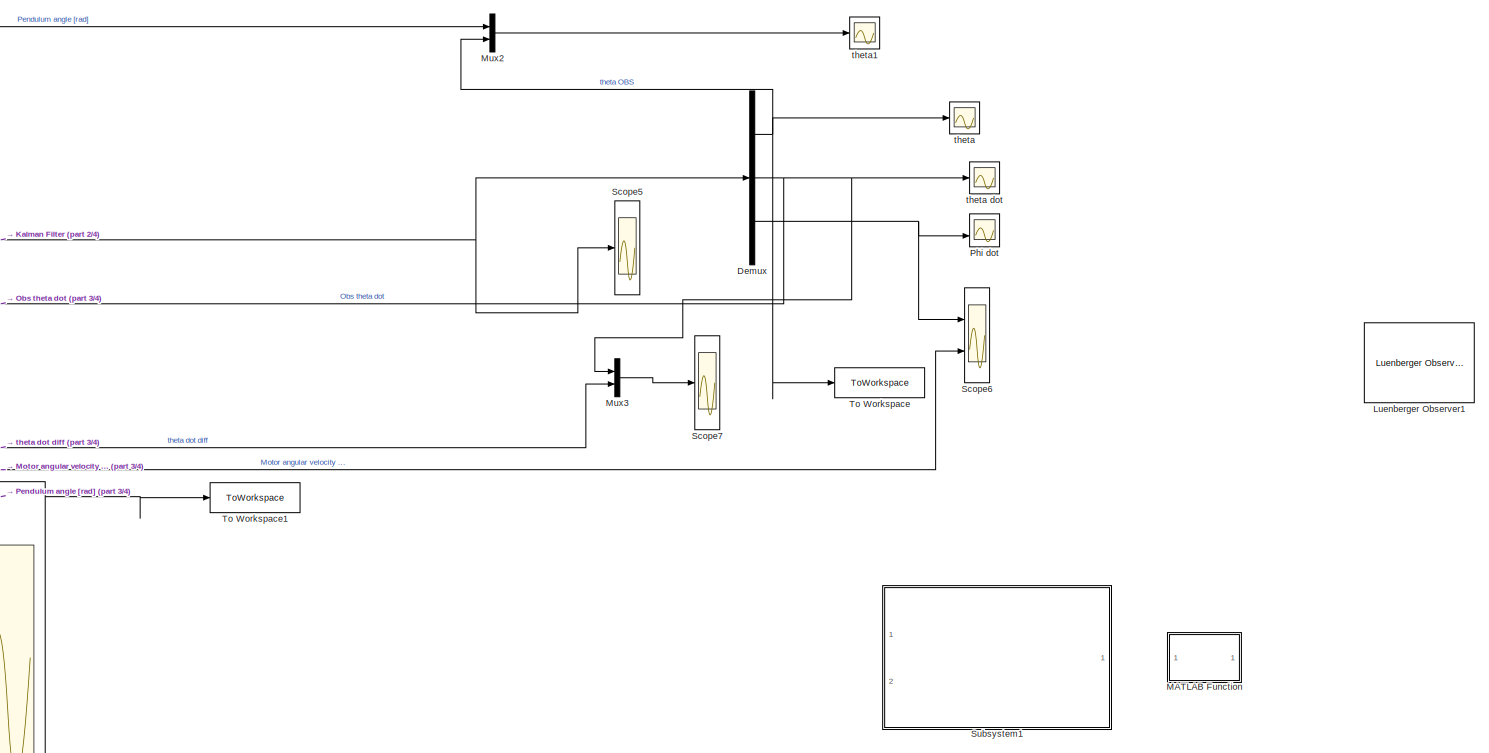
[diagram: root canvas - part 1/4, middle right region]
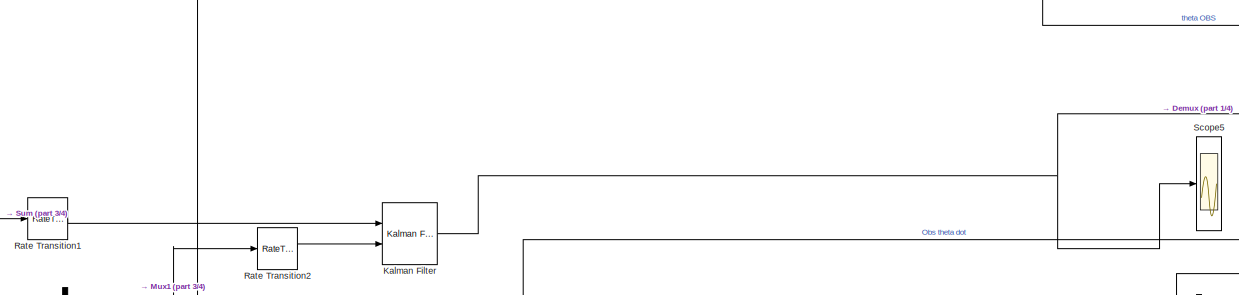
[diagram: root canvas - part 2/4, top center region]
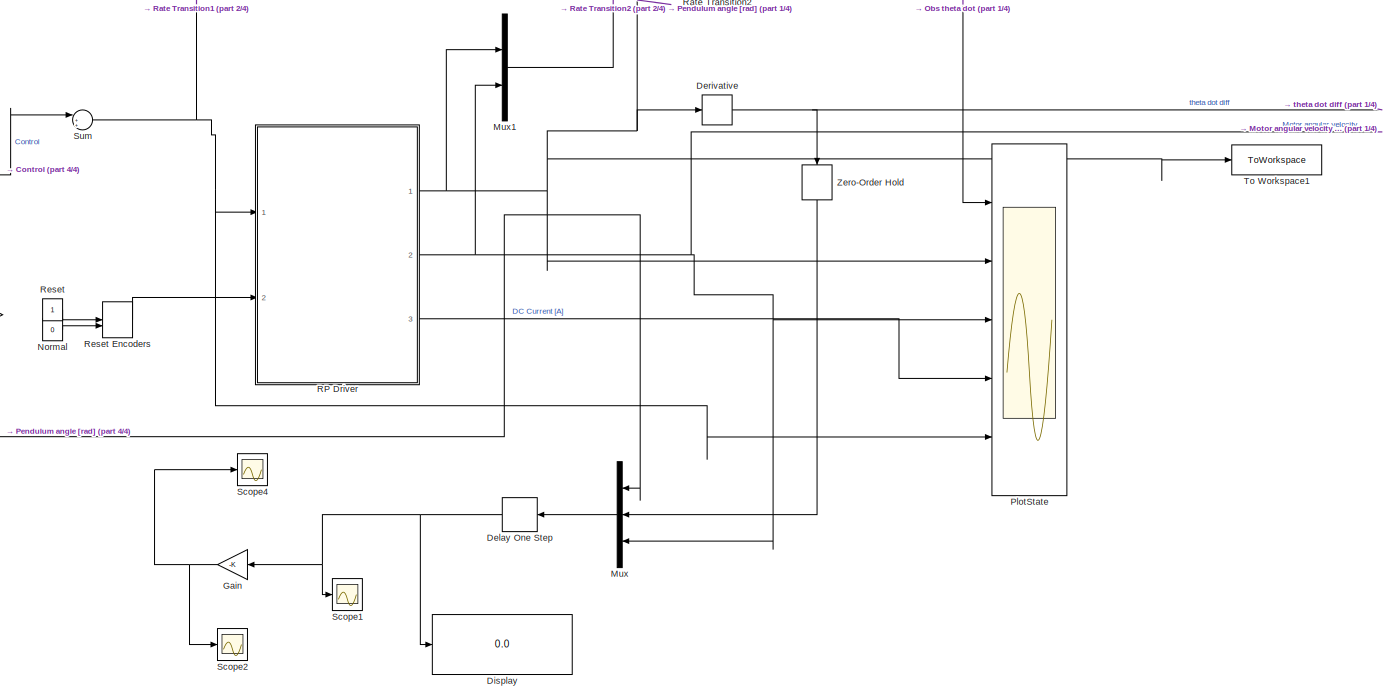
[diagram: root canvas - part 3/4, central region]
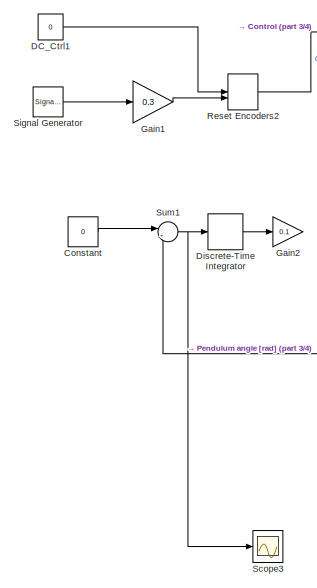
[diagram: root canvas - part 4/4, bottom left region]
MODEL slx_89e87b26c6ea
KIND model
CONFIG AbsTol = auto
CONFIG EnableMultiTasking = on
CONFIG FixedStep = h
CONFIG InitFcn = hwinit
CONFIG MaxStep = auto
CONFIG MinStep = auto
CONFIG PreLoadFcn = warning('off','MATLAB:dispatcher:InexactMatch');\n\n
CONFIG RelTol = 1e-3
CONFIG SampleTimeConstraint = Unconstrained
CONFIG SolverName = FixedStepAuto
CONFIG StartTime = 0.0
CONFIG StopTime = 100
BLOCK [Constant] Constant
  Value = 0
BLOCK [Constant] DC_Ctrl1
  Value = 0
BLOCK [Delay] Delay One Step
  DelayLength = 1
  InputPortMap = u0
  NameLocation = top
  Ports = [1, 1]
  SampleTime = h
BLOCK [Demux] Demux
  Outputs = 3
  Ports = [1, 3]
BLOCK [Derivative] Derivative
BLOCK [DiscreteIntegrator] Discrete-Time Integrator
  ICPrevOutput = DiscIntNeverNeededParam
  ICPrevScaledInput = DiscIntNeverNeededParam
  InitialConditionSetting = Auto
  Ports = [1, 1]
  SampleTime = h
BLOCK [Display] Display
  Decimation = 1
  Ports = [1]
BLOCK [Gain] Gain
  Gain = -K
  Multiplication = Matrix(K*u)
  NameLocation = top
BLOCK [Gain] Gain1
  Gain = 0.3
BLOCK [Gain] Gain2
  Gain = 0.1
BLOCK [Reference] Kalman Filter  REF=ctrlSharedLib/Kalman Filter
  Ports = [2, 1]
  SourceBlock = ctrlSharedLib/Kalman Filter
  SourceProductBaseCode = CT,ID
  SourceType = ctrlKalmanFilter
BLOCK [Reference] Luenberger Observer1  REF=eeLuenbergerObserver/Luenberger Observer
  Commented = on
  Ports = [2, 1]
  SourceBlock = eeLuenbergerObserver/Luenberger Observer
  SourceProductBaseCode = PS
  SourceType = Luenberger Observer
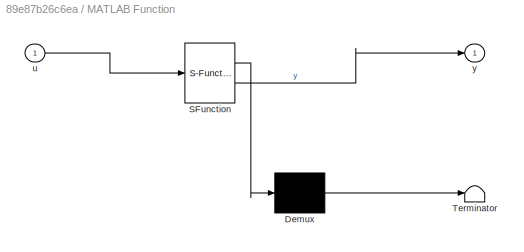
BLOCK [SubSystem] MATLAB Function
  Commented = on
  ErrorFcn = Stateflow.Translate.translate
  PermitHierarchicalResolution = ExplicitOnly
  Ports = [1, 1]
  RequestExecContextInheritance = off
  SFBlockType = MATLAB Function
  TreatAsAtomicUnit = on
BLOCK [Demux] MATLAB Function/ Demux 
  Outputs = 1
  Ports = [1, 1]
BLOCK [S-Function] MATLAB Function/ SFunction 
  EnableBusSupport = on
  FunctionName = sf_sfun
  PortCounts = [1 2]
  Ports = [1, 2]
  SFcnIsStateOwnerBlock = off
  SFunctionDeploymentMode = off
  Tag = Stateflow S-Function 2
BLOCK [Terminator] MATLAB Function/ Terminator 
BLOCK [Inport] MATLAB Function/u
BLOCK [Outport] MATLAB Function/y
BLOCK [Mux] Mux
  DisplayOption = bar
  Inputs = 3
  NameLocation = top
  Ports = [3, 1]
BLOCK [Mux] Mux1
  DisplayOption = bar
  Inputs = 2
  Ports = [2, 1]
BLOCK [Mux] Mux2
  DisplayOption = bar
  Inputs = 2
  Ports = [2, 1]
BLOCK [Mux] Mux3
  DisplayOption = bar
  Inputs = 2
  Ports = [2, 1]
BLOCK [Constant] Normal
  Value = 0
BLOCK [Scope] Phi dot
  Floating = off
  NumInputPorts = 2
  Ports = [2]
  ScopeSpecificationString = Simulink.scopes.TimeScopeBlockCfg('CurrentConfiguration', extmgr.ConfigurationSet(extmgr.Configuration('Core','General UI',true),extmgr.Configuration('Core','Source UI',true),extmgr.Configuration('Sources','WiredSimulink',true,'DataLoggingVariableName','ScopeData4'),extmgr.Configuration('Visuals','Time Domain',true,'SerializedDisplays',{struct('MinYLimReal','-80.17384','MaxYLimReal','267.68982','Y...<+1449ch>
BLOCK [Scope] PlotState
  Floating = off
  NumInputPorts = 5
  Ports = [5]
  ScopeSpecificationString = Simulink.scopes.TimeScopeBlockCfg('CurrentConfiguration', extmgr.ConfigurationSet(extmgr.Configuration('Core','General UI',true),extmgr.Configuration('Core','Source UI',true),extmgr.Configuration('Sources','WiredSimulink',true,'DataLoggingVariableName','StateData','DataLoggingSaveFormat','StructureWithTime','DataLoggingMaxPoints','12000','DataLoggingDecimation','1','DataLoggingDecimateData',true),...<+3776ch>
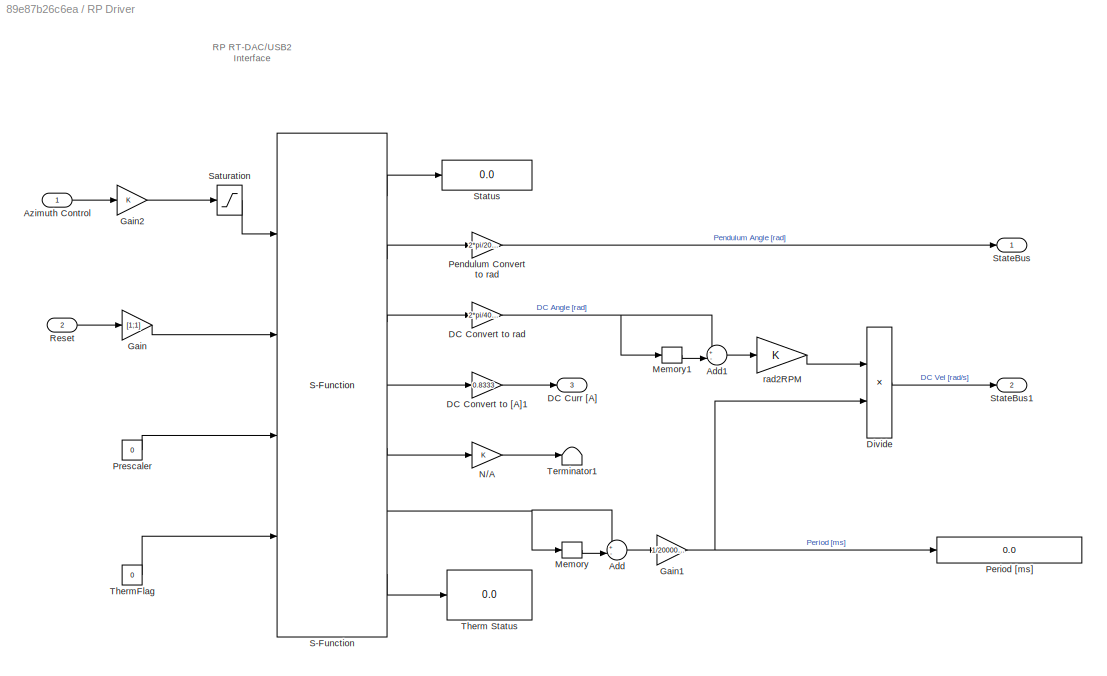
BLOCK [SubSystem] RP Driver
  Ports = [2, 3]
  RequestExecContextInheritance = off
BLOCK [Sum] RP Driver/Add
  Inputs = +-|
  Ports = [2, 1]
BLOCK [Sum] RP Driver/Add1
  Inputs = +-|
  Ports = [2, 1]
BLOCK [Inport] RP Driver/Azimuth Control
BLOCK [Gain] RP Driver/DC Convert to [A]1
  Gain = 0.8333
  OutDataTypeStr = Inherit: Same as input
  ParamDataTypeStr = Inherit: Same as input
  SaturateOnIntegerOverflow = on
BLOCK [Gain] RP Driver/DC Convert to rad
  Gain = 2*pi/4096
  OutDataTypeStr = Inherit: Same as input
  ParamDataTypeStr = Inherit: Same as input
  SaturateOnIntegerOverflow = on
BLOCK [Outport] RP Driver/DC Curr [A]
  Port = 3
  VectorParamsAs1DForOutWhenUnconnected = off
BLOCK [Product] RP Driver/Divide
  Inputs = */
  Ports = [2, 1]
BLOCK [Gain] RP Driver/Gain
  Gain = [1;1]
BLOCK [Gain] RP Driver/Gain1
  Gain = 1/20000000
BLOCK [Gain] RP Driver/Gain2
BLOCK [Memory] RP Driver/Memory
  NameLocation = top
BLOCK [Memory] RP Driver/Memory1
  NameLocation = top
BLOCK [Gain] RP Driver/N//A
  OutDataTypeStr = Inherit: Same as input
  ParamDataTypeStr = Inherit: Same as input
  SaturateOnIntegerOverflow = on
BLOCK [Gain] RP Driver/Pendulum Convert to rad
  Gain = 2*pi/20000
  OutDataTypeStr = Inherit: Same as input
  ParamDataTypeStr = Inherit: Same as input
  SaturateOnIntegerOverflow = on
BLOCK [Display] RP Driver/Period [ms]
  Decimation = 1
  Format = long
  Ports = [1]
BLOCK [Constant] RP Driver/Prescaler
  Value = 0
BLOCK [Inport] RP Driver/Reset
  Port = 2
BLOCK [S-Function] RP Driver/S-Function
  EnableBusSupport = off
  FunctionName = rtdacusb2_rpend_dd
  Parameters = 1, h
  Ports = [4, 7]
  SFcnIsStateOwnerBlock = off
  SFunctionDeploymentMode = off
BLOCK [Saturate] RP Driver/Saturation
  LowerLimit = -1
  UpperLimit = 1
BLOCK [Outport] RP Driver/StateBus
  VectorParamsAs1DForOutWhenUnconnected = off
BLOCK [Outport] RP Driver/StateBus1
  Port = 2
  VectorParamsAs1DForOutWhenUnconnected = off
BLOCK [Display] RP Driver/Status
  Decimation = 1
  Ports = [1]
BLOCK [Terminator] RP Driver/Terminator1
BLOCK [Display] RP Driver/Therm Status
  Decimation = 1
  Ports = [1]
BLOCK [Constant] RP Driver/ThermFlag
  Value = 0
BLOCK [Gain] RP Driver/rad2RPM
  OutDataTypeStr = Inherit: Same as input
  ParamDataTypeStr = Inherit: Same as input
  SaturateOnIntegerOverflow = on
BLOCK [RateTransition] Rate Transition1
BLOCK [RateTransition] Rate Transition2
BLOCK [Constant] Reset
  NameLocation = top
BLOCK [ManualSwitch] Reset Encoders
  CurrentSetting = 0
BLOCK [ManualSwitch] Reset Encoders2
BLOCK [Scope] Scope1
  Floating = off
  NumInputPorts = 1
  Ports = [1]
  ScopeSpecificationString = Simulink.scopes.TimeScopeBlockCfg('CurrentConfiguration', extmgr.ConfigurationSet(extmgr.Configuration('Core','General UI',true),extmgr.Configuration('Core','Source UI',true),extmgr.Configuration('Sources','WiredSimulink',true,'DataLoggingVariableName','ScopeData2'),extmgr.Configuration('Visuals','Time Domain',true,'SerializedDisplays',{struct('MinYLimReal','-43.17757','MaxYLimReal','64.42118','YL...<+1456ch>
BLOCK [Scope] Scope2
  Floating = off
  NumInputPorts = 1
  Ports = [1]
  ScopeSpecificationString = Simulink.scopes.TimeScopeBlockCfg('CurrentConfiguration', extmgr.ConfigurationSet(extmgr.Configuration('Core','General UI',true),extmgr.Configuration('Core','Source UI',true),extmgr.Configuration('Sources','WiredSimulink',true,'DataLoggingVariableName','ScopeData3'),extmgr.Configuration('Visuals','Time Domain',true,'SerializedDisplays',{struct('MinYLimReal','-182.61244','MaxYLimReal','214.23025','...<+1402ch>
BLOCK [Scope] Scope3
  Floating = off
  NumInputPorts = 1
  Ports = [1]
  ScopeSpecificationString = Simulink.scopes.TimeScopeBlockCfg('CurrentConfiguration', extmgr.ConfigurationSet(extmgr.Configuration('Core','General UI',true),extmgr.Configuration('Core','Source UI',true),extmgr.Configuration('Sources','WiredSimulink',true,'DataLoggingVariableName','ScopeData4'),extmgr.Configuration('Visuals','Time Domain',true,'SerializedDisplays',{struct('MinYLimReal','-1.00000','MaxYLimReal','1.00000','YLab...<+1416ch>
BLOCK [Scope] Scope4
  Floating = off
  NumInputPorts = 1
  Ports = [1]
  ScopeSpecificationString = Simulink.scopes.TimeScopeBlockCfg('CurrentConfiguration', extmgr.ConfigurationSet(extmgr.Configuration('Core','General UI',true),extmgr.Configuration('Core','Source UI',true),extmgr.Configuration('Sources','WiredSimulink',true,'DataLoggingVariableName','ScopeData1'),extmgr.Configuration('Visuals','Time Domain',true,'SerializedDisplays',{struct('MinYLimReal','-5.8671','MaxYLimReal','6.07985','YLabe...<+1415ch>
BLOCK [Scope] Scope5
  Floating = off
  NumInputPorts = 1
  Ports = [1]
  ScopeSpecificationString = Simulink.scopes.TimeScopeBlockCfg('CurrentConfiguration', extmgr.ConfigurationSet(extmgr.Configuration('Core','General UI',true),extmgr.Configuration('Core','Source UI',true),extmgr.Configuration('Sources','WiredSimulink',true,'DataLoggingVariableName','ScopeData2'),extmgr.Configuration('Visuals','Time Domain',true,'SerializedDisplays',{struct('MinYLimReal','-48.07811','MaxYLimReal','53.5893','YLa...<+1506ch>
BLOCK [Scope] Scope6
  Floating = off
  NumInputPorts = 2
  Ports = [2]
  ScopeSpecificationString = Simulink.scopes.TimeScopeBlockCfg('CurrentConfiguration', extmgr.ConfigurationSet(extmgr.Configuration('Core','General UI',true),extmgr.Configuration('Core','Source UI',true),extmgr.Configuration('Sources','WiredSimulink',true,'DataLoggingVariableName','ScopeData1'),extmgr.Configuration('Visuals','Time Domain',true,'SerializedDisplays',{struct('MinYLimReal','-0.24787','MaxYLimReal','0.57887','YLab...<+1471ch>
BLOCK [Scope] Scope7
  Floating = off
  NumInputPorts = 1
  Ports = [1]
  ScopeSpecificationString = Simulink.scopes.TimeScopeBlockCfg('CurrentConfiguration', extmgr.ConfigurationSet(extmgr.Configuration('Core','General UI',true),extmgr.Configuration('Core','Source UI',true),extmgr.Configuration('Sources','WiredSimulink',true,'DataLoggingVariableName','ScopeData8'),extmgr.Configuration('Visuals','Time Domain',true,'SerializedDisplays',{struct('MinYLimReal','-0.01677','MaxYLimReal','0.197','YLabel...<+1450ch>
BLOCK [SignalGenerator] Signal Generator
  Frequency = 1/2
  Ports = [0, 1]
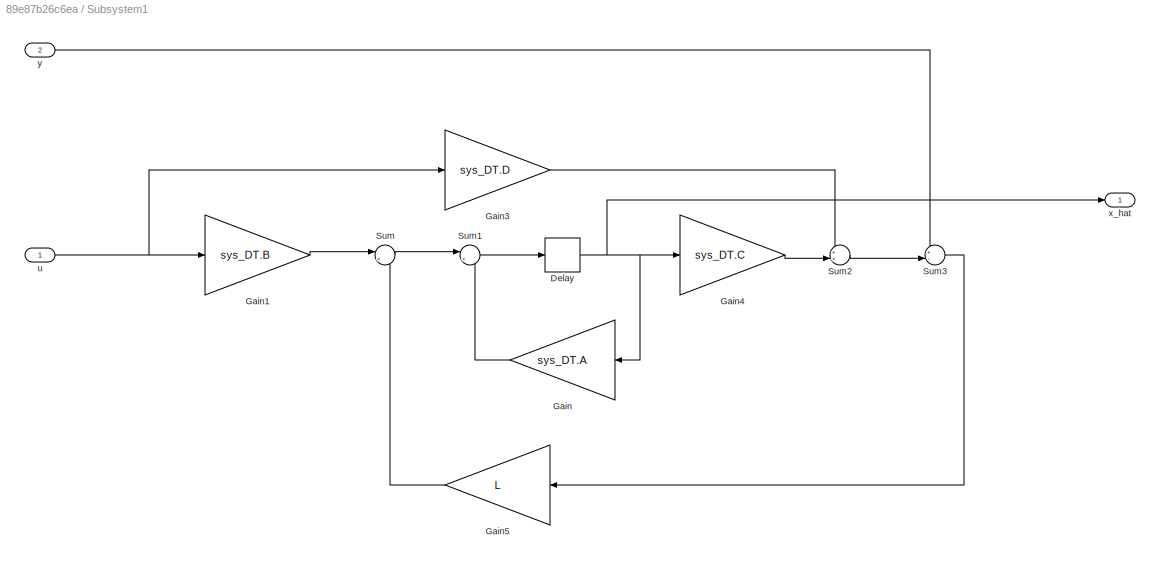
BLOCK [SubSystem] Subsystem1
  Commented = on
  Ports = [2, 1]
  RequestExecContextInheritance = off
BLOCK [Delay] Subsystem1/Delay
  DelayLength = 1
  InputPortMap = u0
  Ports = [1, 1]
  SampleTime = h
BLOCK [Gain] Subsystem1/Gain
  Gain = sys_DT.A
  Multiplication = Matrix(K*u)
  NameLocation = top
BLOCK [Gain] Subsystem1/Gain1
  Gain = sys_DT.B
  Multiplication = Matrix(K*u)
BLOCK [Gain] Subsystem1/Gain3
  Gain = sys_DT.D
  Multiplication = Matrix(K*u)
BLOCK [Gain] Subsystem1/Gain4
  Gain = sys_DT.C
  Multiplication = Matrix(K*u)
BLOCK [Gain] Subsystem1/Gain5
  Gain = L
  Multiplication = Matrix(K*u)
  NameLocation = top
BLOCK [Sum] Subsystem1/Sum
  Inputs = |++
  Ports = [2, 1]
BLOCK [Sum] Subsystem1/Sum1
  Inputs = |++
  Ports = [2, 1]
BLOCK [Sum] Subsystem1/Sum2
  Inputs = ++|
  Ports = [2, 1]
BLOCK [Sum] Subsystem1/Sum3
  Inputs = +-|
  Ports = [2, 1]
BLOCK [Inport] Subsystem1/u
BLOCK [Outport] Subsystem1/x_hat
BLOCK [Inport] Subsystem1/y
  Port = 2
BLOCK [Sum] Sum
  Inputs = |+++
  Ports = [3, 1]
BLOCK [Sum] Sum1
  Inputs = |+-
  Ports = [2, 1]
BLOCK [ToWorkspace] To Workspace
  FixptAsFi = on
  MaxDataPoints = inf
  Ports = [1]
  SampleTime = -1
  SaveFormat = Timeseries
  VariableName = theta_obs
BLOCK [ToWorkspace] To Workspace1
  FixptAsFi = on
  MaxDataPoints = inf
  Ports = [1]
  SampleTime = -1
  SaveFormat = Timeseries
  VariableName = theta_meas
BLOCK [ZeroOrderHold] Zero-Order Hold
  NameLocation = left
  SampleTime = -1
BLOCK [Scope] theta
  Floating = off
  NumInputPorts = 1
  Ports = [1]
  ScopeSpecificationString = Simulink.scopes.TimeScopeBlockCfg('CurrentConfiguration', extmgr.ConfigurationSet(extmgr.Configuration('Core','General UI',true),extmgr.Configuration('Core','Source UI',true),extmgr.Configuration('Sources','WiredSimulink',true,'DataLoggingVariableName','ScopeData7'),extmgr.Configuration('Visuals','Time Domain',true,'SerializedDisplays',{struct('MinYLimReal','-1.82027','MaxYLimReal','1.01598','YLab...<+1468ch>
BLOCK [Scope] theta dot
  Floating = off
  NumInputPorts = 1
  Ports = [1]
  ScopeSpecificationString = Simulink.scopes.TimeScopeBlockCfg('CurrentConfiguration', extmgr.ConfigurationSet(extmgr.Configuration('Core','General UI',true),extmgr.Configuration('Core','Source UI',true),extmgr.Configuration('Sources','WiredSimulink',true,'DataLoggingVariableName','ScopeData5'),extmgr.Configuration('Visuals','Time Domain',true,'SerializedDisplays',{struct('MinYLimReal','-50.93485','MaxYLimReal','77.87499','YL...<+1451ch>
BLOCK [Scope] theta1
  Floating = off
  NumInputPorts = 1
  Ports = [1]
  ScopeSpecificationString = Simulink.scopes.TimeScopeBlockCfg('CurrentConfiguration', extmgr.ConfigurationSet(extmgr.Configuration('Core','General UI',true),extmgr.Configuration('Core','Source UI',true),extmgr.Configuration('Sources','WiredSimulink',true,'DataLoggingVariableName','ScopeData6'),extmgr.Configuration('Visuals','Time Domain',true,'SerializedDisplays',{struct('MinYLimReal','0.484','MaxYLimReal','0.48414','YLabelR...<+1453ch>
ANNOTATION RP Driver: RP RT-DAC/USB2 Interface
LINE Constant:1 -> Sum1:1
LINE DC_Ctrl1:1 -> Reset Encoders2:1
NET Delay One Step:1 -> Display:1, Gain:1, Scope1:1
NET Demux:1 -> Mux2:2, To Workspace:1, theta:1
NET Demux:2 -> Mux3:1, PlotState:1, theta dot:1
NET Demux:3 -> Phi dot:2, Scope6:1
NET Derivative:1 -> Mux3:2, Zero-Order Hold:1
LINE Discrete-Time Integrator:1 -> Gain2:1
LINE Gain1:1 -> Reset Encoders2:2
NET Gain:1 -> Scope2:1, Scope4:1
NET Kalman Filter:1 -> Demux:1, Scope5:1
LINE Mux1:1 -> Rate Transition2:1
LINE Mux2:1 -> theta1:1
LINE Mux3:1 -> Scope7:1
LINE Mux:1 -> Delay One Step:1
LINE Normal:1 -> Reset Encoders:2
LINE RP Driver/Add1:1 -> RP Driver/rad2RPM:1
LINE RP Driver/Add:1 -> RP Driver/Gain1:1
LINE RP Driver/Azimuth Control:1 -> RP Driver/Gain2:1
LINE RP Driver/DC Convert to [A]1:1 -> RP Driver/DC Curr [A]:1
NET RP Driver/DC Convert to rad:1 -> RP Driver/Add1:1, RP Driver/Memory1:1
LINE RP Driver/Divide:1 -> RP Driver/StateBus1:1
NET RP Driver/Gain1:1 -> RP Driver/Divide:2, RP Driver/Period [ms]:1
LINE RP Driver/Gain2:1 -> RP Driver/Saturation:1
LINE RP Driver/Gain:1 -> RP Driver/S-Function:2
LINE RP Driver/Memory1:1 -> RP Driver/Add1:2
LINE RP Driver/Memory:1 -> RP Driver/Add:2
LINE RP Driver/N//A:1 -> RP Driver/Terminator1:1
LINE RP Driver/Pendulum Convert to rad:1 -> RP Driver/StateBus:1
LINE RP Driver/Prescaler:1 -> RP Driver/S-Function:3
LINE RP Driver/Reset:1 -> RP Driver/Gain:1
LINE RP Driver/S-Function:1 -> RP Driver/Status:1
LINE RP Driver/S-Function:2 -> RP Driver/Pendulum Convert to rad:1
LINE RP Driver/S-Function:3 -> RP Driver/DC Convert to rad:1
LINE RP Driver/S-Function:4 -> RP Driver/DC Convert to [A]1:1
LINE RP Driver/S-Function:5 -> RP Driver/N//A:1
NET RP Driver/S-Function:6 -> RP Driver/Add:1, RP Driver/Memory:1
LINE RP Driver/S-Function:7 -> RP Driver/Therm Status:1
LINE RP Driver/Saturation:1 -> RP Driver/S-Function:1
LINE RP Driver/ThermFlag:1 -> RP Driver/S-Function:4
LINE RP Driver/rad2RPM:1 -> RP Driver/Divide:1
NET RP Driver:1 -> Derivative:1, Mux1:1, Mux2:1, Mux:1, PlotState:2, Sum1:2, To Workspace1:1
NET RP Driver:2 -> Mux1:2, Mux:3, PlotState:3, Scope6:2
LINE RP Driver:3 -> PlotState:4
LINE Rate Transition1:1 -> Kalman Filter:1
LINE Rate Transition2:1 -> Kalman Filter:2
LINE Reset Encoders2:1 -> Sum:1
LINE Reset Encoders:1 -> RP Driver:2
LINE Reset:1 -> Reset Encoders:1
LINE Signal Generator:1 -> Gain1:1
NET Subsystem1/Delay:1 -> Subsystem1/Gain4:1, Subsystem1/Gain:1, Subsystem1/x_hat:1
LINE Subsystem1/Gain1:1 -> Subsystem1/Sum:1
LINE Subsystem1/Gain3:1 -> Subsystem1/Sum2:1
LINE Subsystem1/Gain4:1 -> Subsystem1/Sum2:2
LINE Subsystem1/Gain5:1 -> Subsystem1/Sum:2
LINE Subsystem1/Gain:1 -> Subsystem1/Sum1:2
LINE Subsystem1/Sum1:1 -> Subsystem1/Delay:1
LINE Subsystem1/Sum2:1 -> Subsystem1/Sum3:2
LINE Subsystem1/Sum3:1 -> Subsystem1/Gain5:1
LINE Subsystem1/Sum:1 -> Subsystem1/Sum1:1
NET Subsystem1/u:1 -> Subsystem1/Gain1:1, Subsystem1/Gain3:1
LINE Subsystem1/y:1 -> Subsystem1/Sum3:1
NET Sum1:1 -> Discrete-Time Integrator:1, Scope3:1
NET Sum:1 -> PlotState:5, RP Driver:1, Rate Transition1:1
LINE Zero-Order Hold:1 -> Mux:2
note: NET lines group one-source signal fan-out (src -> all destinations, sorted); 1:1 wires keep LINE
CHART MATLAB Function states=1 transitions=1
  STATE_LABEL 'eML_blk_kernel()'
  STATE_LABEL "SCRIPT:\nfunction y = fcn(u)\na21 = -9.9834;\na22 = -9.9834;\na24 = 0.0108;\na41 = 11.4724;\na42 = -0.0378;\na44 = -0.9255;\nb2  = -3.0625;\nb4  = 348.4161;\nTs = 0.05;\n\nA = [0 1 0; \n     -a21 a22 a24; \n     -a41 a42 a44];\nB = [0; b2; b4];\nC = [1 0 0;\n    0 0 1];\nD = [0;0];\n\n% Discretize system using 'zoh'\nsys_CT = ss(A,B,C,D);\nsys_DT = c2d(sys_CT, Ts, 'zoh');\n\nTs = 0.05;\nG_disc = ss(sys_DT.A, sys_DT.B, sys...<+112ch>"
CHART  states=0 transitions=0
